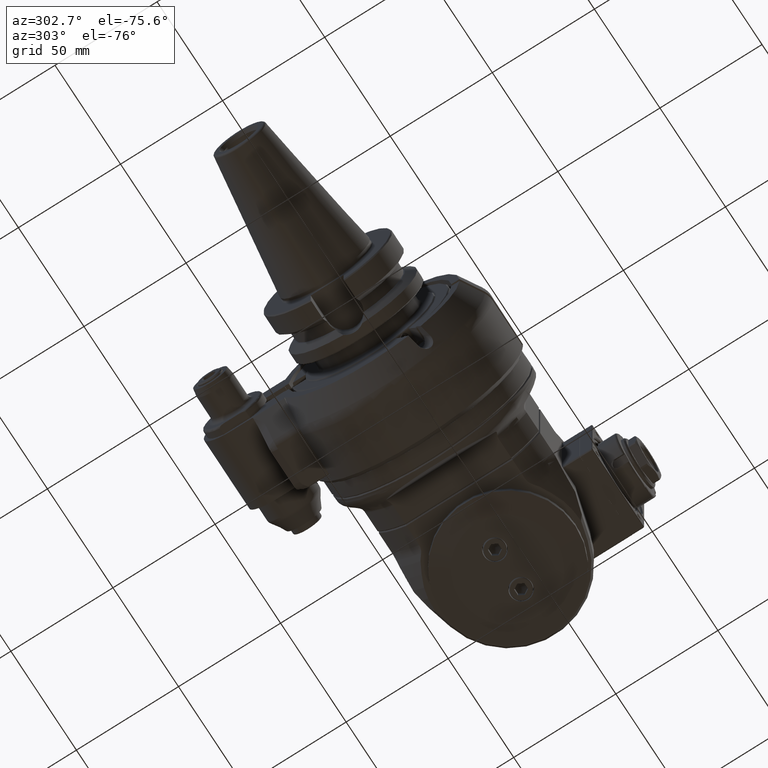
[diagram: clean part render]
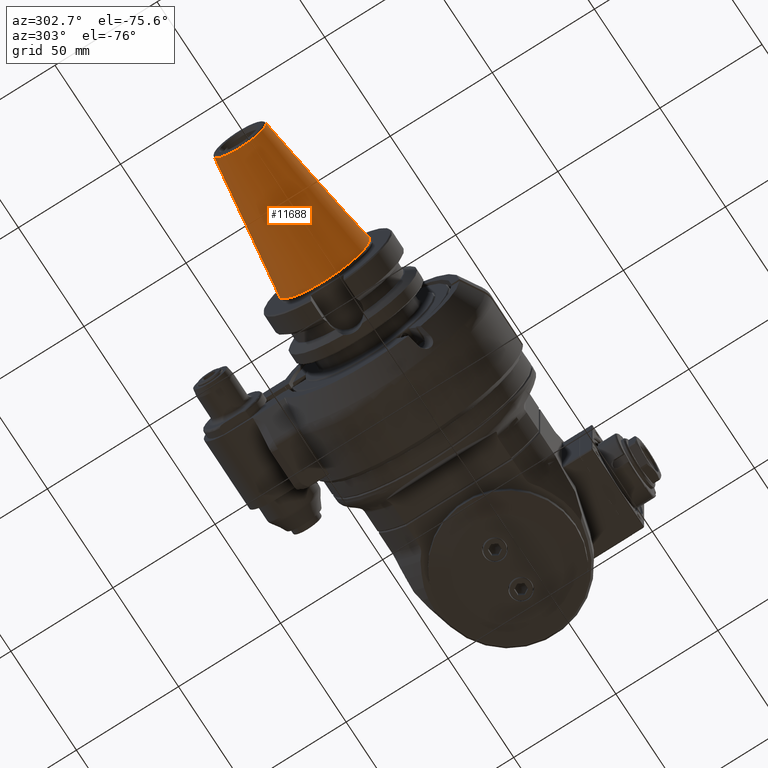
[diagram: same view with one face highlighted and labeled with its STEP entity id]
A machine part, auxiliary view. The second image highlights one B-rep face of the part: STEP entity #11688.
In plain terms, the highlighted conical surface has half-angle 8.297 deg.
Its self-contained STEP definition (entity closure, byte-faithful):
#401=CONICAL_SURFACE('',#12936,17.51864715413,0.144812411498922);
#996=CIRCLE('',#12934,22.225);
#997=CIRCLE('',#12935,22.225);
#998=CIRCLE('',#12937,12.81229430825);
#1675=FACE_OUTER_BOUND('',#2461,.T.);
#2461=EDGE_LOOP('',(#10588,#10589,#10590,#10591,#10592));
#3262=LINE('',#51290,#4057);
#4057=VECTOR('',#16089,17.51864715413);
#5550=VERTEX_POINT('',#51283);
#5551=VERTEX_POINT('',#51284);
#5552=VERTEX_POINT('',#51289);
#7233=EDGE_CURVE('',#5550,#5551,#996,.T.);
#7234=EDGE_CURVE('',#5551,#5550,#997,.T.);
#7236=EDGE_CURVE('',#5551,#5552,#3262,.T.);
#7237=EDGE_CURVE('',#5552,#5552,#998,.T.);
#10588=ORIENTED_EDGE('',*,*,#7233,.F.);
#10589=ORIENTED_EDGE('',*,*,#7234,.F.);
#10590=ORIENTED_EDGE('',*,*,#7236,.T.);
#10591=ORIENTED_EDGE('',*,*,#7237,.F.);
#10592=ORIENTED_EDGE('',*,*,#7236,.F.);
#11688=ADVANCED_FACE('',(#1675),#401,.T.);
#12934=AXIS2_PLACEMENT_3D('',#51285,#16082,#16083);
#12935=AXIS2_PLACEMENT_3D('',#51286,#16084,#16085);
#12936=AXIS2_PLACEMENT_3D('',#51288,#16087,#16088);
#12937=AXIS2_PLACEMENT_3D('',#51291,#16090,#16091);
#16082=DIRECTION('center_axis',(1.,0.,0.));
#16083=DIRECTION('ref_axis',(0.,1.,0.));
#16084=DIRECTION('center_axis',(1.,0.,0.));
#16085=DIRECTION('ref_axis',(0.,1.,0.));
#16087=DIRECTION('center_axis',(1.,0.,0.));
#16088=DIRECTION('ref_axis',(0.,-1.,0.));
#16089=DIRECTION('',(-0.98953299358046,-0.144306807239621,-1.76724869581176E-17));
#16090=DIRECTION('center_axis',(-1.,0.,0.));
#16091=DIRECTION('ref_axis',(0.,1.,0.));
#51283=CARTESIAN_POINT('',(-86.,-22.225,0.));
#51284=CARTESIAN_POINT('',(-86.0000000000006,22.225000000004,2.72177751110548E-15));
#51285=CARTESIAN_POINT('Origin',(-86.,0.,0.));
#51286=CARTESIAN_POINT('Origin',(-86.,0.,0.));
#51288=CARTESIAN_POINT('Origin',(-118.27215340362,0.,0.));
#51289=CARTESIAN_POINT('',(-150.5443068072,12.81229430825,0.));
#51290=CARTESIAN_POINT('',(-118.27215340362,17.51864715413,2.14541551626972E-15));
#51291=CARTESIAN_POINT('Origin',(-150.5443068072,0.,0.));